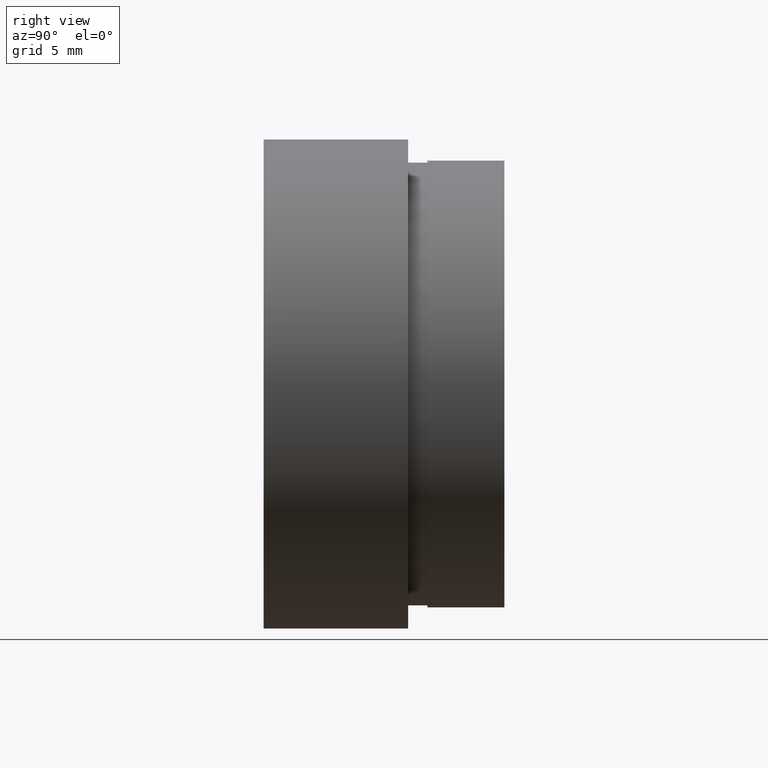
[diagram: clean part render]
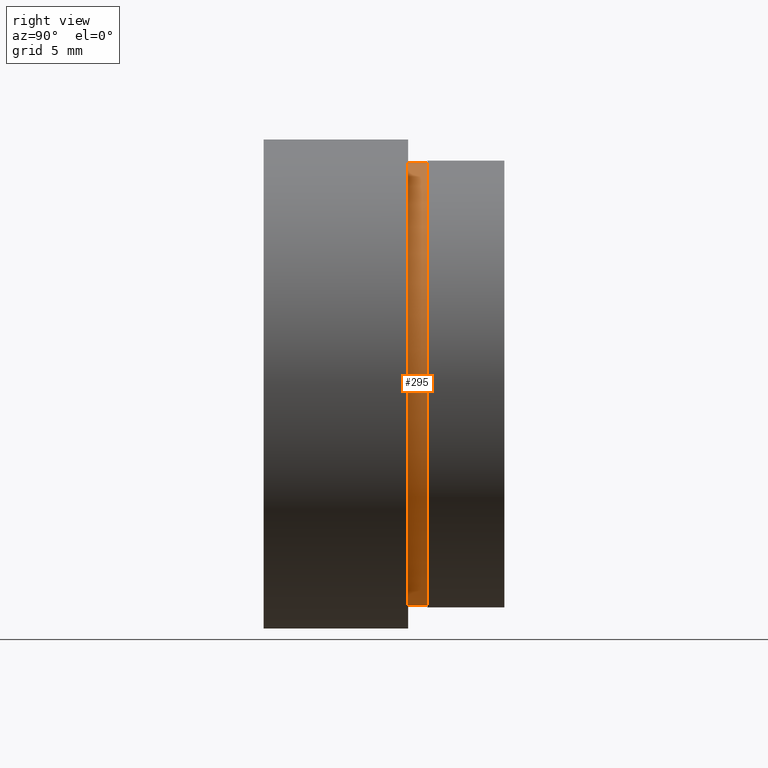
[diagram: same view with one face highlighted and labeled with its STEP entity id]
A machine part, right view. The second image highlights one B-rep face of the part: STEP entity #295.
In plain terms, the highlighted cylindrical surface (partial cylindrical patch) has radius 11.5 mm, axis along (-0, 1, -0).
Its self-contained STEP definition (entity closure, byte-faithful):
#1 = CARTESIAN_POINT ( 'NONE',  ( 0.0000000000000000000, 8.499999999999980500, 0.0000000000000000000 ) ) ;
#9 = ORIENTED_EDGE ( 'NONE', *, *, #207, .T. ) ;
#48 = VERTEX_POINT ( 'NONE', #610 ) ;
#81 = DIRECTION ( 'NONE',  ( -0.0000000000000000000, 1.000000000000000000, -0.0000000000000000000 ) ) ;
#129 = CARTESIAN_POINT ( 'NONE',  ( 0.0000000000000000000, 7.499999999999978700, 0.0000000000000000000 ) ) ;
#134 = DIRECTION ( 'NONE',  ( 0.0000000000000000000, 0.0000000000000000000, 1.000000000000000000 ) ) ;
#165 = ORIENTED_EDGE ( 'NONE', *, *, #273, .F. ) ;
#181 = AXIS2_PLACEMENT_3D ( 'NONE', #129, #385, #134 ) ;
#189 = CARTESIAN_POINT ( 'NONE',  ( 0.0000000000000000000, 161.3761669434274500, 0.0000000000000000000 ) ) ;
#207 = EDGE_CURVE ( 'NONE', #210, #48, #539, .T. ) ;
#210 = VERTEX_POINT ( 'NONE', #242 ) ;
#237 = CARTESIAN_POINT ( 'NONE',  ( 0.0000000000000000000, 8.499999999999980500, 11.50000000000001800 ) ) ;
#242 = CARTESIAN_POINT ( 'NONE',  ( 1.408343819019458300E-015, 7.499999999999978700, -11.50000000000001800 ) ) ;
#253 = EDGE_CURVE ( 'NONE', #422, #210, #332, .T. ) ;
#273 = EDGE_CURVE ( 'NONE', #343, #48, #318, .T. ) ;
#286 = AXIS2_PLACEMENT_3D ( 'NONE', #1, #81, #435 ) ;
#295 = ADVANCED_FACE ( 'NONE', ( #509 ), #296, .T. ) ;
#296 = CYLINDRICAL_SURFACE ( 'NONE', #477, 11.50000000000001800 ) ;
#300 = CARTESIAN_POINT ( 'NONE',  ( 0.0000000000000000000, 7.499999999999978700, 11.50000000000001800 ) ) ;
#318 = CIRCLE ( 'NONE', #286, 11.50000000000001800 ) ;
#324 = CARTESIAN_POINT ( 'NONE',  ( 1.408343819019458300E-015, 161.3761669434274500, -11.50000000000001800 ) ) ;
#332 = CIRCLE ( 'NONE', #181, 11.50000000000001800 ) ;
#333 = VECTOR ( 'NONE', #602, 1000.000000000000000 ) ;
#342 = DIRECTION ( 'NONE',  ( 0.0000000000000000000, 0.0000000000000000000, 1.000000000000000000 ) ) ;
#343 = VERTEX_POINT ( 'NONE', #237 ) ;
#350 = LINE ( 'NONE', #408, #333 ) ;
#368 = VECTOR ( 'NONE', #518, 1000.000000000000000 ) ;
#385 = DIRECTION ( 'NONE',  ( -0.0000000000000000000, 1.000000000000000000, -0.0000000000000000000 ) ) ;
#407 = EDGE_LOOP ( 'NONE', ( #456, #9, #165, #491 ) ) ;
#408 = CARTESIAN_POINT ( 'NONE',  ( 0.0000000000000000000, 161.3761669434274500, 11.50000000000001800 ) ) ;
#422 = VERTEX_POINT ( 'NONE', #300 ) ;
#434 = DIRECTION ( 'NONE',  ( -0.0000000000000000000, 1.000000000000000000, -0.0000000000000000000 ) ) ;
#435 = DIRECTION ( 'NONE',  ( 0.0000000000000000000, 0.0000000000000000000, 1.000000000000000000 ) ) ;
#456 = ORIENTED_EDGE ( 'NONE', *, *, #253, .T. ) ;
#477 = AXIS2_PLACEMENT_3D ( 'NONE', #189, #434, #342 ) ;
#485 = EDGE_CURVE ( 'NONE', #422, #343, #350, .T. ) ;
#491 = ORIENTED_EDGE ( 'NONE', *, *, #485, .F. ) ;
#509 = FACE_OUTER_BOUND ( 'NONE', #407, .T. ) ;
#518 = DIRECTION ( 'NONE',  ( -0.0000000000000000000, 1.000000000000000000, -0.0000000000000000000 ) ) ;
#539 = LINE ( 'NONE', #324, #368 ) ;
#602 = DIRECTION ( 'NONE',  ( -0.0000000000000000000, 1.000000000000000000, -0.0000000000000000000 ) ) ;
#610 = CARTESIAN_POINT ( 'NONE',  ( 1.408343819019458300E-015, 8.499999999999980500, -11.50000000000001800 ) ) ;